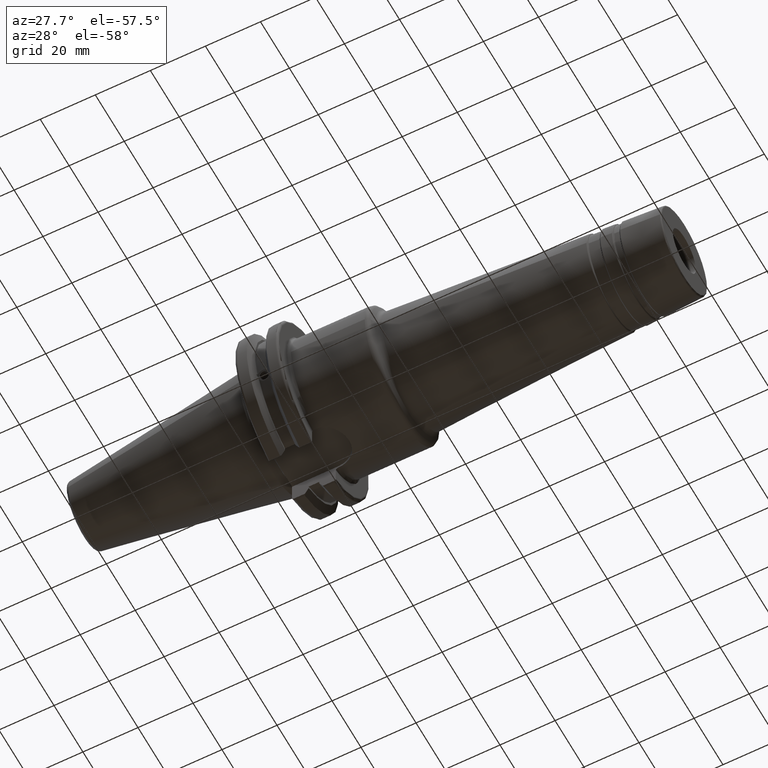
[diagram: clean part render]
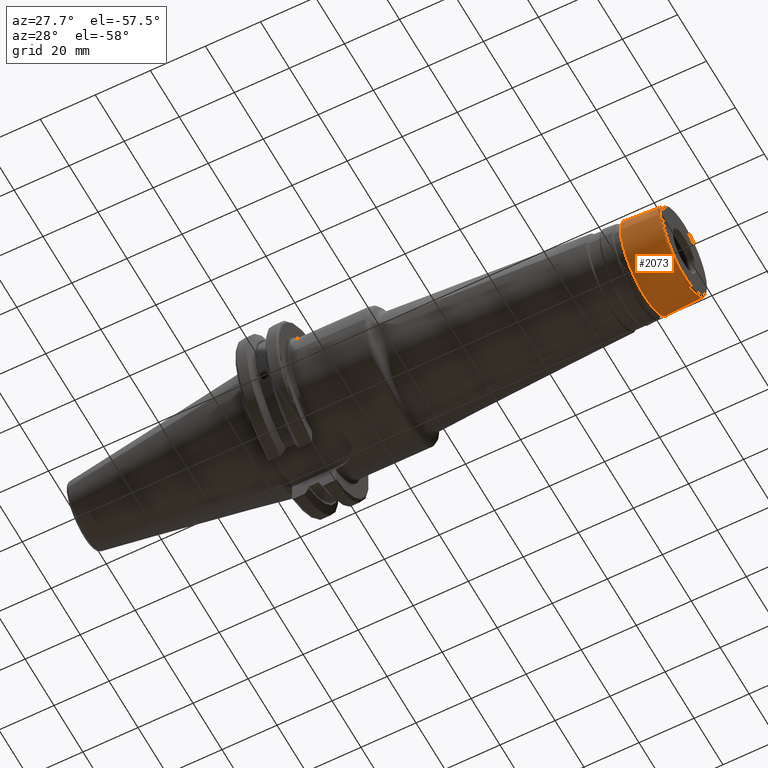
[diagram: same view with one face highlighted and labeled with its STEP entity id]
A machine part, auxiliary view. The second image highlights one B-rep face of the part: STEP entity #2073.
In plain terms, the highlighted conical surface has half-angle 3 deg.
Its self-contained STEP definition (entity closure, byte-faithful):
#192=FACE_OUTER_BOUND('',#300,.T.);
#300=EDGE_LOOP('',(#1433,#1434,#1435,#1436,#1437,#1438,#1439,#1440));
#417=LINE('',#3361,#516);
#516=VECTOR('',#2584,16.3848185972057);
#636=CIRCLE('',#2228,16.0248324840198);
#637=CIRCLE('',#2229,16.0248324840198);
#638=CIRCLE('',#2230,16.0248324840198);
#640=CIRCLE('',#2233,16.7575507230413);
#641=CIRCLE('',#2234,16.7575507230413);
#642=CIRCLE('',#2235,16.7575507230413);
#813=VERTEX_POINT('',#3351);
#814=VERTEX_POINT('',#3353);
#815=VERTEX_POINT('',#3355);
#816=VERTEX_POINT('',#3360);
#817=VERTEX_POINT('',#3362);
#818=VERTEX_POINT('',#3364);
#1063=EDGE_CURVE('',#813,#814,#636,.T.);
#1064=EDGE_CURVE('',#814,#815,#637,.T.);
#1065=EDGE_CURVE('',#815,#813,#638,.T.);
#1067=EDGE_CURVE('',#814,#816,#417,.T.);
#1068=EDGE_CURVE('',#817,#816,#640,.T.);
#1069=EDGE_CURVE('',#818,#817,#641,.T.);
#1070=EDGE_CURVE('',#816,#818,#642,.T.);
#1433=ORIENTED_EDGE('',*,*,#1065,.F.);
#1434=ORIENTED_EDGE('',*,*,#1064,.F.);
#1435=ORIENTED_EDGE('',*,*,#1067,.T.);
#1436=ORIENTED_EDGE('',*,*,#1068,.F.);
#1437=ORIENTED_EDGE('',*,*,#1069,.F.);
#1438=ORIENTED_EDGE('',*,*,#1070,.F.);
#1439=ORIENTED_EDGE('',*,*,#1067,.F.);
#1440=ORIENTED_EDGE('',*,*,#1063,.F.);
#2044=CONICAL_SURFACE('',#2232,16.3848185972057,0.0523598775598296);
#2073=ADVANCED_FACE('',(#192),#2044,.T.);
#2228=AXIS2_PLACEMENT_3D('',#3354,#2574,#2575);
#2229=AXIS2_PLACEMENT_3D('',#3356,#2576,#2577);
#2230=AXIS2_PLACEMENT_3D('',#3357,#2578,#2579);
#2232=AXIS2_PLACEMENT_3D('',#3359,#2582,#2583);
#2233=AXIS2_PLACEMENT_3D('',#3363,#2585,#2586);
#2234=AXIS2_PLACEMENT_3D('',#3365,#2587,#2588);
#2235=AXIS2_PLACEMENT_3D('',#3366,#2589,#2590);
#2574=DIRECTION('center_axis',(1.,0.,0.));
#2575=DIRECTION('ref_axis',(0.,-1.,3.06161699786838E-17));
#2576=DIRECTION('center_axis',(1.,0.,0.));
#2577=DIRECTION('ref_axis',(0.,-1.,3.06161699786838E-17));
#2578=DIRECTION('center_axis',(1.,0.,0.));
#2579=DIRECTION('ref_axis',(0.,-1.,3.06161699786838E-17));
#2582=DIRECTION('center_axis',(-1.,0.,0.));
#2583=DIRECTION('ref_axis',(0.,1.,0.));
#2584=DIRECTION('',(-0.998629534754574,-0.0523359562429436,-6.40930612932368E-18));
#2585=DIRECTION('center_axis',(-1.,0.,0.));
#2586=DIRECTION('ref_axis',(0.,-1.,3.06161699786838E-17));
#2587=DIRECTION('center_axis',(-1.,0.,0.));
#2588=DIRECTION('ref_axis',(0.,-1.,3.06161699786838E-17));
#2589=DIRECTION('center_axis',(-1.,0.,0.));
#2590=DIRECTION('ref_axis',(0.,-1.,3.06161699786838E-17));
#3351=CARTESIAN_POINT('',(149.526167978121,-1.96247598084274E-15,16.0248324840198));
#3353=CARTESIAN_POINT('',(149.526167978121,-16.0248324840198,-1.96247598084274E-15));
#3354=CARTESIAN_POINT('Origin',(149.526167978121,0.,-2.45309497605343E-15));
#3355=CARTESIAN_POINT('',(149.526167978121,16.0248324840198,-9.81237990421371E-16));
#3356=CARTESIAN_POINT('Origin',(149.526167978121,0.,-2.45309497605343E-15));
#3357=CARTESIAN_POINT('Origin',(149.526167978121,0.,-2.45309497605343E-15));
#3359=CARTESIAN_POINT('Origin',(142.657223746739,0.,0.));
#3360=CARTESIAN_POINT('',(135.545071105762,-16.7575507230413,-2.05220808545219E-15));
#3361=CARTESIAN_POINT('',(142.657223746739,-16.3848185972057,-2.0065615649678E-15));
#3362=CARTESIAN_POINT('',(135.545071105762,16.7575507230413,-5.13052021363048E-15));
#3363=CARTESIAN_POINT('Origin',(135.545071105762,0.,-2.56526010681524E-15));
#3364=CARTESIAN_POINT('',(135.545071105762,-2.05220808545219E-15,16.7575507230413));
#3365=CARTESIAN_POINT('Origin',(135.545071105762,0.,-2.56526010681524E-15));
#3366=CARTESIAN_POINT('Origin',(135.545071105762,0.,-2.56526010681524E-15));